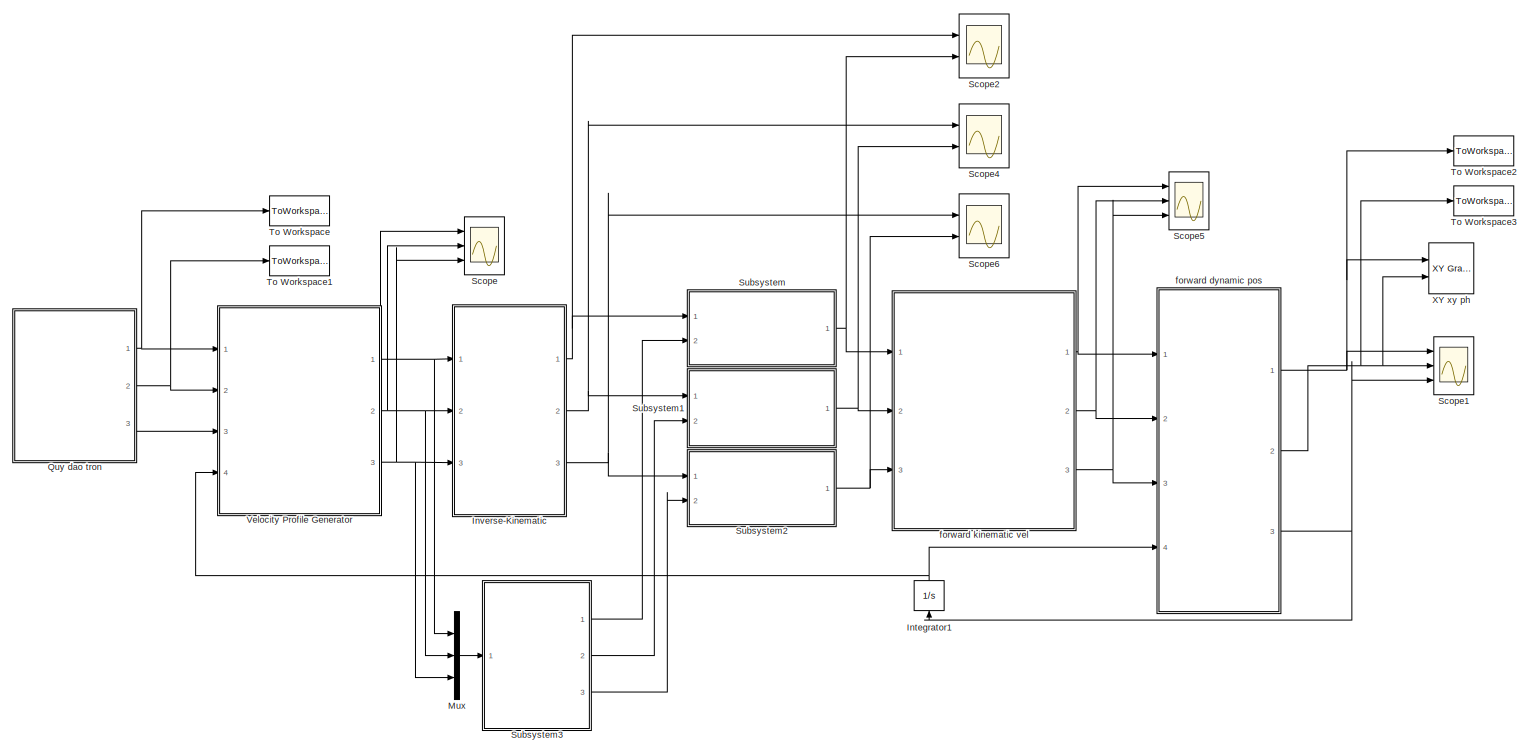
[diagram: root canvas - part 1/1, most of the canvas]
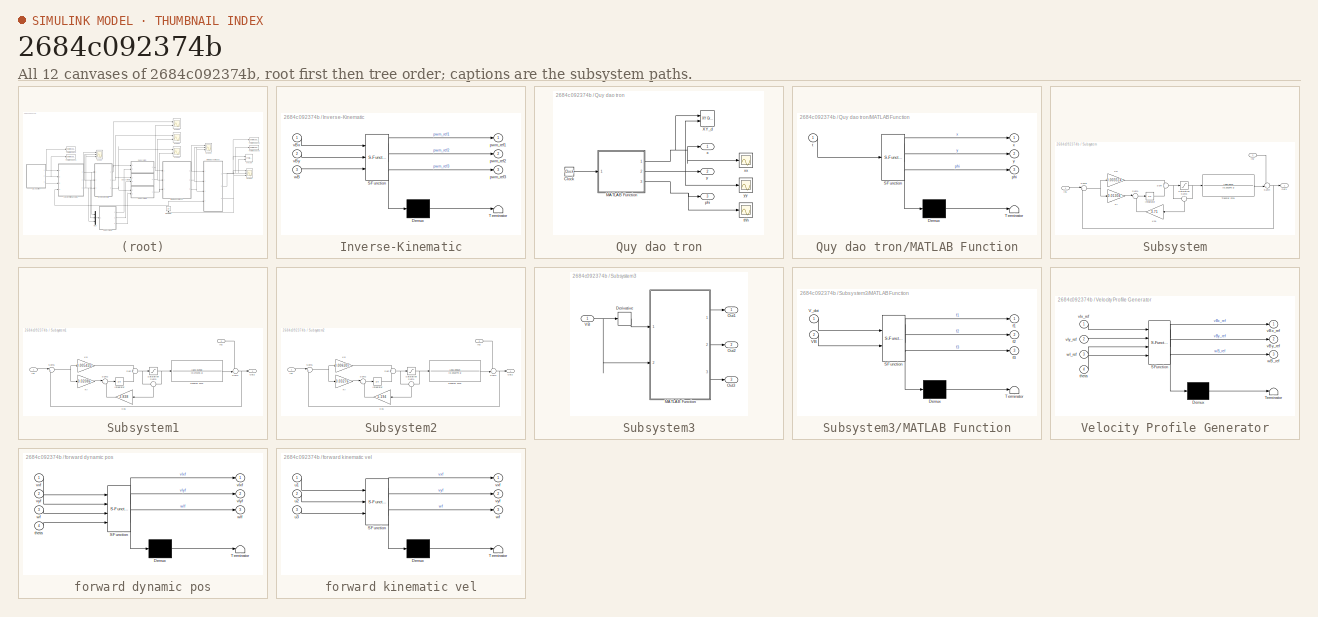
[diagram: thumbnail index - all 12 canvases of the model, root first then tree order]
MODEL slx_2684c092374b
KIND model
CONFIG AbsTol = auto
CONFIG EnableMultiTasking = off
CONFIG FixedStep = auto
CONFIG MaxStep = auto
CONFIG MinStep = auto
CONFIG RelTol = 1e-3
CONFIG SampleTimeConstraint = Unconstrained
CONFIG Solver = VariableStepAuto
CONFIG SolverName = VariableStepAuto
CONFIG StartTime = 0.0
CONFIG StopTime = 300
BLOCK [Integrator] Integrator1
  Ports = [1, 1]
BLOCK [SubSystem] Inverse-Kinematic
  ErrorFcn = Stateflow.Translate.translate
  PermitHierarchicalResolution = ExplicitOnly
  Ports = [3, 3]
  RequestExecContextInheritance = off
  SFBlockType = MATLAB Function
  TreatAsAtomicUnit = on
BLOCK [Demux] Inverse-Kinematic/ Demux 
  Outputs = 1
  Ports = [1, 1]
BLOCK [S-Function] Inverse-Kinematic/ SFunction 
  EnableBusSupport = on
  FunctionName = sf_sfun
  PortCounts = [3 4]
  Ports = [3, 4]
  SFcnIsStateOwnerBlock = off
  SFunctionDeploymentMode = off
  Tag = Stateflow S-Function OMNI_BOT_MOEDL2 4
BLOCK [Terminator] Inverse-Kinematic/ Terminator 
BLOCK [Outport] Inverse-Kinematic/pwm_ref1
  IconDisplay = Port number
BLOCK [Outport] Inverse-Kinematic/pwm_ref2
  IconDisplay = Port number
  Port = 2
BLOCK [Outport] Inverse-Kinematic/pwm_ref3
  IconDisplay = Port number
  Port = 3
BLOCK [Inport] Inverse-Kinematic/vBx
  IconDisplay = Port number
BLOCK [Inport] Inverse-Kinematic/vBy
  IconDisplay = Port number
  Port = 2
BLOCK [Inport] Inverse-Kinematic/wB
  IconDisplay = Port number
  Port = 3
BLOCK [Mux] Mux
  DisplayOption = bar
  Inputs = 3
  Ports = [3, 1]
BLOCK [SubSystem] Quy dao tron
  Ports = [0, 3]
  RequestExecContextInheritance = off
BLOCK [Clock] Quy dao tron/Clock
  Decimation = 1
BLOCK [SubSystem] Quy dao tron/MATLAB Function
  ErrorFcn = Stateflow.Translate.translate
  PermitHierarchicalResolution = ExplicitOnly
  Ports = [1, 3]
  RequestExecContextInheritance = off
  SFBlockType = MATLAB Function
  TreatAsAtomicUnit = on
BLOCK [Demux] Quy dao tron/MATLAB Function/ Demux 
  DisplayOption = bar
  Outputs = 1
  Ports = [1, 1]
BLOCK [S-Function] Quy dao tron/MATLAB Function/ SFunction 
  EnableBusSupport = on
  FunctionName = sf_sfun
  PortCounts = [1 4]
  Ports = [1, 4]
  SFcnIsStateOwnerBlock = off
  SFunctionDeploymentMode = off
  Tag = Stateflow S-Function OMNI_BOT_MOEDL2 6
BLOCK [Terminator] Quy dao tron/MATLAB Function/ Terminator 
BLOCK [Outport] Quy dao tron/MATLAB Function/phi
  IconDisplay = Port number
  Port = 3
  VectorParamsAs1DForOutWhenUnconnected = on
BLOCK [Inport] Quy dao tron/MATLAB Function/t
  IconDisplay = Port number
BLOCK [Outport] Quy dao tron/MATLAB Function/x
  IconDisplay = Port number
  VectorParamsAs1DForOutWhenUnconnected = on
BLOCK [Outport] Quy dao tron/MATLAB Function/y
  IconDisplay = Port number
  Port = 2
  VectorParamsAs1DForOutWhenUnconnected = on
BLOCK [Reference] Quy dao tron/XY_d  REF=simulink/Sinks/XY Graph
  Ports = [2]
  SourceBlock = simulink/Sinks/XY Graph
  SourceProductBaseCode = SL
  SourceType = XY scope.
BLOCK [Outport] Quy dao tron/phi
  IconDisplay = Port number
  Port = 3
  VectorParamsAs1DForOutWhenUnconnected = on
BLOCK [Scope] Quy dao tron/thh
  Floating = off
  NumInputPorts = 1
  Ports = [1]
  ScopeSpecificationString = Simulink.scopes.TimeScopeBlockCfg('CurrentConfiguration', extmgr.ConfigurationSet(extmgr.Configuration('Core','General UI',true),extmgr.Configuration('Core','Source UI',true),extmgr.Configuration('Sources','WiredSimulink',true,'DataLoggingVariableName','ScopeData2'),extmgr.Configuration('Visuals','Time Domain',true,'SerializedDisplays',{struct('MinYLimReal','0.7854','MaxYLimReal','8.63938','YLabel...<+1353ch>
BLOCK [Outport] Quy dao tron/x
  IconDisplay = Port number
  VectorParamsAs1DForOutWhenUnconnected = on
BLOCK [Scope] Quy dao tron/xx
  Floating = off
  NumInputPorts = 1
  Ports = [1]
  ScopeSpecificationString = Simulink.scopes.TimeScopeBlockCfg('CurrentConfiguration', extmgr.ConfigurationSet(extmgr.Configuration('Core','General UI',true),extmgr.Configuration('Core','Source UI',true),extmgr.Configuration('Sources','WiredSimulink',true,'DataLoggingVariableName','ScopeData4'),extmgr.Configuration('Visuals','Time Domain',true,'SerializedDisplays',{struct('MinYLimReal','-1.24992','MaxYLimReal','1.24999','YLab...<+1376ch>
BLOCK [Outport] Quy dao tron/y
  IconDisplay = Port number
  Port = 2
  VectorParamsAs1DForOutWhenUnconnected = on
BLOCK [Scope] Quy dao tron/yy
  Floating = off
  NumInputPorts = 1
  Ports = [1]
  ScopeSpecificationString = Simulink.scopes.TimeScopeBlockCfg('CurrentConfiguration', extmgr.ConfigurationSet(extmgr.Configuration('Core','General UI',true),extmgr.Configuration('Core','Source UI',true),extmgr.Configuration('Sources','WiredSimulink',true,'DataLoggingVariableName','ScopeData3'),extmgr.Configuration('Visuals','Time Domain',true,'SerializedDisplays',{struct('MinYLimReal','-1.24994','MaxYLimReal','1.24992','YLab...<+1376ch>
BLOCK [Scope] Scope
  Floating = off
  NumInputPorts = 3
  Ports = [3]
  ScopeSpecificationString = Simulink.scopes.TimeScopeBlockCfg('CurrentConfiguration', extmgr.ConfigurationSet(extmgr.Configuration('Core','General UI',true),extmgr.Configuration('Core','Source UI',true),extmgr.Configuration('Sources','WiredSimulink',true),extmgr.Configuration('Visuals','Time Domain',true,'SerializedDisplays',{struct('MinYLimReal','-2.10664','MaxYLimReal','8.96072','YLabelReal','','MinYLimMag','0.00000','MaxY...<+1456ch>
BLOCK [Scope] Scope1
  Floating = off
  NumInputPorts = 3
  Ports = [3]
  ScopeSpecificationString = Simulink.scopes.TimeScopeBlockCfg('CurrentConfiguration', extmgr.ConfigurationSet(extmgr.Configuration('Core','General UI',true),extmgr.Configuration('Core','Source UI',true),extmgr.Configuration('Sources','WiredSimulink',true,'DataLoggingVariableName','ScopeData1'),extmgr.Configuration('Visuals','Time Domain',true,'SerializedDisplays',{struct('MinYLimReal','-2.09898','MaxYLimReal','8.89309','YLab...<+1465ch>
BLOCK [Scope] Scope2
  Floating = off
  NumInputPorts = 2
  Ports = [2]
  ScopeSpecificationString = Simulink.scopes.TimeScopeBlockCfg('CurrentConfiguration', extmgr.ConfigurationSet(extmgr.Configuration('Core','General UI',true),extmgr.Configuration('Core','Source UI',true),extmgr.Configuration('Sources','WiredSimulink',true,'DataLoggingVariableName','ScopeData1'),extmgr.Configuration('Visuals','Time Domain',true,'SerializedDisplays',{struct('MinYLimReal','-2485.46908','MaxYLimReal','3823.39179'...<+1446ch>
BLOCK [Scope] Scope4
  Floating = off
  NumInputPorts = 2
  Ports = [2]
  ScopeSpecificationString = Simulink.scopes.TimeScopeBlockCfg('CurrentConfiguration', extmgr.ConfigurationSet(extmgr.Configuration('Core','General UI',true),extmgr.Configuration('Core','Source UI',true),extmgr.Configuration('Sources','WiredSimulink',true,'DataLoggingVariableName','ScopeData2'),extmgr.Configuration('Visuals','Time Domain',true,'SerializedDisplays',{struct('MinYLimReal','-2020.33209','MaxYLimReal','3962.48018'...<+1472ch>
BLOCK [Scope] Scope5
  Floating = off
  NumInputPorts = 3
  Ports = [3]
  ScopeSpecificationString = Simulink.scopes.TimeScopeBlockCfg('CurrentConfiguration', extmgr.ConfigurationSet(extmgr.Configuration('Core','General UI',true),extmgr.Configuration('Core','Source UI',true),extmgr.Configuration('Sources','WiredSimulink',true,'DataLoggingVariableName','ScopeData5'),extmgr.Configuration('Visuals','Time Domain',true,'SerializedDisplays',{struct('MinYLimReal','-2.09883','MaxYLimReal','8.89307','YLab...<+1468ch>
BLOCK [Scope] Scope6
  Floating = off
  NumInputPorts = 2
  Ports = [2]
  ScopeSpecificationString = Simulink.scopes.TimeScopeBlockCfg('CurrentConfiguration', extmgr.ConfigurationSet(extmgr.Configuration('Core','General UI',true),extmgr.Configuration('Core','Source UI',true),extmgr.Configuration('Sources','WiredSimulink',true,'DataLoggingVariableName','ScopeData3'),extmgr.Configuration('Visuals','Time Domain',true,'SerializedDisplays',{struct('MinYLimReal','-2207.36863','MaxYLimReal','3892.21149'...<+1472ch>
BLOCK [SubSystem] Subsystem
  Ports = [2, 1]
  RequestExecContextInheritance = off
BLOCK [Inport] Subsystem/In1
  IconDisplay = Port number
BLOCK [Inport] Subsystem/In2
  IconDisplay = Port number
  Port = 2
BLOCK [Integrator] Subsystem/Integrator
  Ports = [1, 1]
BLOCK [Gain] Subsystem/Ki
  Gain = 0.01304
  OutDataTypeStr = Inherit: Inherit via internal rule
  ParamDataTypeStr = Inherit: Inherit via internal rule
  SaturateOnIntegerOverflow = off
BLOCK [Gain] Subsystem/Kp
  Gain = 0.003514
  OutDataTypeStr = Inherit: Inherit via internal rule
  ParamDataTypeStr = Inherit: Inherit via internal rule
  SaturateOnIntegerOverflow = off
BLOCK [Gain] Subsystem/Kp1
  Gain = 3.71
  OutDataTypeStr = Inherit: Inherit via internal rule
  ParamDataTypeStr = Inherit: Inherit via internal rule
  SaturateOnIntegerOverflow = off
BLOCK [Outport] Subsystem/Out1
  IconDisplay = Port number
BLOCK [Saturate] Subsystem/Saturation
  InputPortMap = u0
  LowerLimit = -12
  Ports = [1, 1]
  UpperLimit = 12
BLOCK [Sum] Subsystem/Sum
  IconShape = round
  InputSameDT = off
  Inputs = +|+
  OutDataTypeStr = Inherit: Inherit via internal rule
  Ports = [2, 1]
  SaturateOnIntegerOverflow = off
BLOCK [Sum] Subsystem/Sum1
  IconShape = round
  InputSameDT = off
  Inputs = |++
  OutDataTypeStr = Inherit: Inherit via internal rule
  Ports = [2, 1]
  SaturateOnIntegerOverflow = off
BLOCK [Sum] Subsystem/Sum3
  IconShape = round
  InputSameDT = off
  Inputs = -|+
  OutDataTypeStr = Inherit: Inherit via internal rule
  Ports = [2, 1]
  SaturateOnIntegerOverflow = off
BLOCK [Sum] Subsystem/Sum4
  IconShape = round
  InputSameDT = off
  Inputs = -+|
  OutDataTypeStr = Inherit: Inherit via internal rule
  Ports = [2, 1]
  SaturateOnIntegerOverflow = off
BLOCK [Sum] Subsystem/Sum5
  IconShape = round
  InputSameDT = off
  Inputs = |+-
  OutDataTypeStr = Inherit: Inherit via internal rule
  Ports = [2, 1]
  SaturateOnIntegerOverflow = off
BLOCK [TransferFcn] Subsystem/Transfer Fcn1
  Denominator = [0.291876 1]
  Numerator = [496.5947]
BLOCK [SubSystem] Subsystem1
  Ports = [2, 1]
  RequestExecContextInheritance = off
BLOCK [Inport] Subsystem1/In1 
  IconDisplay = Port number
BLOCK [Inport] Subsystem1/In2 
  IconDisplay = Port number
  Port = 2
BLOCK [Integrator] Subsystem1/Integrator
  Ports = [1, 1]
BLOCK [Gain] Subsystem1/Ki
  Gain = 0.02086
  OutDataTypeStr = Inherit: Inherit via internal rule
  ParamDataTypeStr = Inherit: Inherit via internal rule
  SaturateOnIntegerOverflow = off
BLOCK [Gain] Subsystem1/Kp
  Gain = 0.005435
  OutDataTypeStr = Inherit: Inherit via internal rule
  ParamDataTypeStr = Inherit: Inherit via internal rule
  SaturateOnIntegerOverflow = off
BLOCK [Gain] Subsystem1/Kp1
  Gain = 3.838
  OutDataTypeStr = Inherit: Inherit via internal rule
  ParamDataTypeStr = Inherit: Inherit via internal rule
  SaturateOnIntegerOverflow = off
BLOCK [Outport] Subsystem1/Out2
  IconDisplay = Port number
BLOCK [Saturate] Subsystem1/Saturation
  InputPortMap = u0
  LowerLimit = -12
  Ports = [1, 1]
  UpperLimit = 12
BLOCK [Sum] Subsystem1/Sum
  IconShape = round
  InputSameDT = off
  Inputs = +|+
  OutDataTypeStr = Inherit: Inherit via internal rule
  Ports = [2, 1]
  SaturateOnIntegerOverflow = off
BLOCK [Sum] Subsystem1/Sum2
  IconShape = round
  InputSameDT = off
  Inputs = |++
  OutDataTypeStr = Inherit: Inherit via internal rule
  Ports = [2, 1]
  SaturateOnIntegerOverflow = off
BLOCK [Sum] Subsystem1/Sum3
  IconShape = round
  InputSameDT = off
  Inputs = -|+
  OutDataTypeStr = Inherit: Inherit via internal rule
  Ports = [2, 1]
  SaturateOnIntegerOverflow = off
BLOCK [Sum] Subsystem1/Sum4
  IconShape = round
  InputSameDT = off
  Inputs = -+|
  OutDataTypeStr = Inherit: Inherit via internal rule
  Ports = [2, 1]
  SaturateOnIntegerOverflow = off
BLOCK [Sum] Subsystem1/Sum5
  IconShape = round
  InputSameDT = off
  Inputs = |+-
  OutDataTypeStr = Inherit: Inherit via internal rule
  Ports = [2, 1]
  SaturateOnIntegerOverflow = off
BLOCK [TransferFcn] Subsystem1/Transfer Fcn1
  Denominator = [0.271376 1]
  Numerator = [324.41492]
BLOCK [SubSystem] Subsystem2
  Ports = [2, 1]
  RequestExecContextInheritance = off
BLOCK [Inport] Subsystem2/In1 
  IconDisplay = Port number
BLOCK [Inport] Subsystem2/In2 
  IconDisplay = Port number
  Port = 2
BLOCK [Integrator] Subsystem2/Integrator
  Ports = [1, 1]
BLOCK [Gain] Subsystem2/Ki
  Gain = 0.03276
  OutDataTypeStr = Inherit: Inherit via internal rule
  ParamDataTypeStr = Inherit: Inherit via internal rule
  SaturateOnIntegerOverflow = off
BLOCK [Gain] Subsystem2/Kp
  Gain = 0.006307
  OutDataTypeStr = Inherit: Inherit via internal rule
  ParamDataTypeStr = Inherit: Inherit via internal rule
  SaturateOnIntegerOverflow = off
BLOCK [Gain] Subsystem2/Kp1
  Gain = 5.194
  OutDataTypeStr = Inherit: Inherit via internal rule
  ParamDataTypeStr = Inherit: Inherit via internal rule
  SaturateOnIntegerOverflow = off
BLOCK [Outport] Subsystem2/Out2
  IconDisplay = Port number
BLOCK [Saturate] Subsystem2/Saturation
  InputPortMap = u0
  LowerLimit = -12
  Ports = [1, 1]
  UpperLimit = 12
BLOCK [Sum] Subsystem2/Sum
  IconShape = round
  InputSameDT = off
  Inputs = +|+
  OutDataTypeStr = Inherit: Inherit via internal rule
  Ports = [2, 1]
  SaturateOnIntegerOverflow = off
BLOCK [Sum] Subsystem2/Sum1
  IconShape = round
  InputSameDT = off
  Inputs = -|+
  OutDataTypeStr = Inherit: Inherit via internal rule
  Ports = [2, 1]
  SaturateOnIntegerOverflow = off
BLOCK [Sum] Subsystem2/Sum2
  IconShape = round
  InputSameDT = off
  Inputs = |++
  OutDataTypeStr = Inherit: Inherit via internal rule
  Ports = [2, 1]
  SaturateOnIntegerOverflow = off
BLOCK [Sum] Subsystem2/Sum4
  IconShape = round
  InputSameDT = off
  Inputs = -+|
  OutDataTypeStr = Inherit: Inherit via internal rule
  Ports = [2, 1]
  SaturateOnIntegerOverflow = off
BLOCK [Sum] Subsystem2/Sum5
  IconShape = round
  InputSameDT = off
  Inputs = |+-
  OutDataTypeStr = Inherit: Inherit via internal rule
  Ports = [2, 1]
  SaturateOnIntegerOverflow = off
BLOCK [TransferFcn] Subsystem2/Transfer Fcn2
  Denominator = [0.1918779 1]
  Numerator = [292.09967]
BLOCK [SubSystem] Subsystem3
  Ports = [1, 3]
  RequestExecContextInheritance = off
BLOCK [Derivative] Subsystem3/Derivative
BLOCK [SubSystem] Subsystem3/MATLAB Function
  ErrorFcn = Stateflow.Translate.translate
  PermitHierarchicalResolution = ExplicitOnly
  Ports = [2, 3]
  RequestExecContextInheritance = off
  SFBlockType = MATLAB Function
  TreatAsAtomicUnit = on
BLOCK [Demux] Subsystem3/MATLAB Function/ Demux 
  Outputs = 1
  Ports = [1, 1]
BLOCK [S-Function] Subsystem3/MATLAB Function/ SFunction 
  EnableBusSupport = on
  FunctionName = sf_sfun
  PortCounts = [2 4]
  Ports = [2, 4]
  SFcnIsStateOwnerBlock = off
  SFunctionDeploymentMode = off
  Tag = Stateflow S-Function OMNI_BOT_MOEDL2 1
BLOCK [Terminator] Subsystem3/MATLAB Function/ Terminator 
BLOCK [Inport] Subsystem3/MATLAB Function/VB
  IconDisplay = Port number
  Port = 2
BLOCK [Inport] Subsystem3/MATLAB Function/V_dot
  IconDisplay = Port number
BLOCK [Outport] Subsystem3/MATLAB Function/f1
  IconDisplay = Port number
BLOCK [Outport] Subsystem3/MATLAB Function/f2
  IconDisplay = Port number
  Port = 2
BLOCK [Outport] Subsystem3/MATLAB Function/f3
  IconDisplay = Port number
  Port = 3
BLOCK [Outport] Subsystem3/Out1
  IconDisplay = Port number
BLOCK [Outport] Subsystem3/Out2
  IconDisplay = Port number
  Port = 2
BLOCK [Outport] Subsystem3/Out3
  IconDisplay = Port number
  Port = 3
BLOCK [Inport] Subsystem3/VB
  IconDisplay = Port number
BLOCK [ToWorkspace] To Workspace
  FixptAsFi = on
  MaxDataPoints = inf
  Ports = [1]
  SampleTime = -1
  SaveFormat = Timeseries
  VariableName = x_set
BLOCK [ToWorkspace] To Workspace1
  FixptAsFi = on
  MaxDataPoints = inf
  Ports = [1]
  SampleTime = -1
  SaveFormat = Timeseries
  VariableName = y_set
BLOCK [ToWorkspace] To Workspace2
  FixptAsFi = on
  MaxDataPoints = inf
  Ports = [1]
  SampleTime = -1
  SaveFormat = Timeseries
  VariableName = x_rb
BLOCK [ToWorkspace] To Workspace3
  FixptAsFi = on
  MaxDataPoints = inf
  Ports = [1]
  SampleTime = -1
  SaveFormat = Timeseries
  VariableName = y_rb
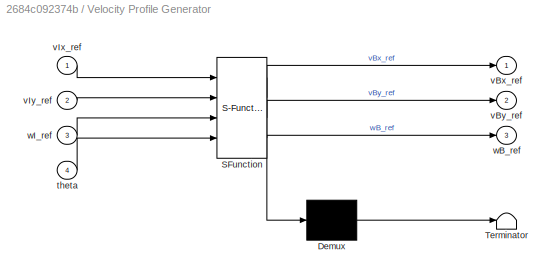
BLOCK [SubSystem] Velocity Profile Generator
  ErrorFcn = Stateflow.Translate.translate
  PermitHierarchicalResolution = ExplicitOnly
  Ports = [4, 3]
  RequestExecContextInheritance = off
  SFBlockType = MATLAB Function
  TreatAsAtomicUnit = on
BLOCK [Demux] Velocity Profile Generator/ Demux 
  Outputs = 1
  Ports = [1, 1]
BLOCK [S-Function] Velocity Profile Generator/ SFunction 
  EnableBusSupport = on
  FunctionName = sf_sfun
  PortCounts = [4 4]
  Ports = [4, 4]
  SFcnIsStateOwnerBlock = off
  SFunctionDeploymentMode = off
  Tag = Stateflow S-Function OMNI_BOT_MOEDL2 5
BLOCK [Terminator] Velocity Profile Generator/ Terminator 
BLOCK [Inport] Velocity Profile Generator/theta
  IconDisplay = Port number
  Port = 4
BLOCK [Outport] Velocity Profile Generator/vBx_ref
  IconDisplay = Port number
BLOCK [Outport] Velocity Profile Generator/vBy_ref
  IconDisplay = Port number
  Port = 2
BLOCK [Inport] Velocity Profile Generator/vIx_ref
  IconDisplay = Port number
BLOCK [Inport] Velocity Profile Generator/vIy_ref
  IconDisplay = Port number
  Port = 2
BLOCK [Outport] Velocity Profile Generator/wB_ref
  IconDisplay = Port number
  Port = 3
BLOCK [Inport] Velocity Profile Generator/wI_ref
  IconDisplay = Port number
  Port = 3
BLOCK [Reference] XY xy ph  REF=simulink/Sinks/XY Graph
  Ports = [2]
  SourceBlock = simulink/Sinks/XY Graph
  SourceProductBaseCode = SL
  SourceType = XY scope.
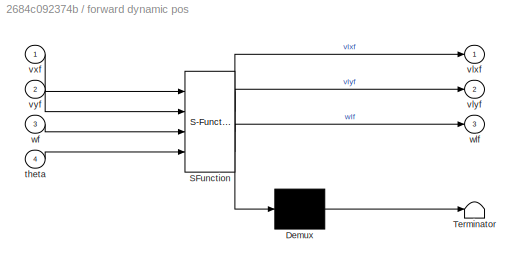
BLOCK [SubSystem] forward dynamic pos
  ErrorFcn = Stateflow.Translate.translate
  PermitHierarchicalResolution = ExplicitOnly
  Ports = [4, 3]
  RequestExecContextInheritance = off
  SFBlockType = MATLAB Function
  TreatAsAtomicUnit = on
BLOCK [Demux] forward dynamic pos/ Demux 
  Outputs = 1
  Ports = [1, 1]
BLOCK [S-Function] forward dynamic pos/ SFunction 
  EnableBusSupport = on
  FunctionName = sf_sfun
  PortCounts = [4 4]
  Ports = [4, 4]
  SFcnIsStateOwnerBlock = off
  SFunctionDeploymentMode = off
  Tag = Stateflow S-Function OMNI_BOT_MOEDL2 2
BLOCK [Terminator] forward dynamic pos/ Terminator 
BLOCK [Inport] forward dynamic pos/theta
  IconDisplay = Port number
  Port = 4
BLOCK [Outport] forward dynamic pos/vlxf
  IconDisplay = Port number
BLOCK [Outport] forward dynamic pos/vlyf
  IconDisplay = Port number
  Port = 2
BLOCK [Inport] forward dynamic pos/vxf
  IconDisplay = Port number
BLOCK [Inport] forward dynamic pos/vyf
  IconDisplay = Port number
  Port = 2
BLOCK [Inport] forward dynamic pos/wf
  IconDisplay = Port number
  Port = 3
BLOCK [Outport] forward dynamic pos/wlf
  IconDisplay = Port number
  Port = 3
BLOCK [SubSystem] forward kinematic vel
  ErrorFcn = Stateflow.Translate.translate
  PermitHierarchicalResolution = ExplicitOnly
  Ports = [3, 3]
  RequestExecContextInheritance = off
  SFBlockType = MATLAB Function
  TreatAsAtomicUnit = on
BLOCK [Demux] forward kinematic vel/ Demux 
  Outputs = 1
  Ports = [1, 1]
BLOCK [S-Function] forward kinematic vel/ SFunction 
  EnableBusSupport = on
  FunctionName = sf_sfun
  PortCounts = [3 4]
  Ports = [3, 4]
  SFcnIsStateOwnerBlock = off
  SFunctionDeploymentMode = off
  Tag = Stateflow S-Function OMNI_BOT_MOEDL2 3
BLOCK [Terminator] forward kinematic vel/ Terminator 
BLOCK [Inport] forward kinematic vel/u1
  IconDisplay = Port number
BLOCK [Inport] forward kinematic vel/u2
  IconDisplay = Port number
  Port = 2
BLOCK [Inport] forward kinematic vel/u3
  IconDisplay = Port number
  Port = 3
BLOCK [Outport] forward kinematic vel/vxf
  IconDisplay = Port number
BLOCK [Outport] forward kinematic vel/vyf
  IconDisplay = Port number
  Port = 2
BLOCK [Outport] forward kinematic vel/wf
  IconDisplay = Port number
  Port = 3
NET Integrator1:1 -> Velocity Profile Generator:4, forward dynamic pos:4
NET Inverse-Kinematic:1 -> Scope2:1, Subsystem:1
NET Inverse-Kinematic:2 -> Scope4:1, Subsystem1:1
NET Inverse-Kinematic:3 -> Scope6:1, Subsystem2:1
LINE Mux:1 -> Subsystem3:1
LINE Quy dao tron/Clock:1 -> Quy dao tron/MATLAB Function:1
NET Quy dao tron/MATLAB Function:1 -> Quy dao tron/XY_d:1, Quy dao tron/x:1, Quy dao tron/xx:1
NET Quy dao tron/MATLAB Function:2 -> Quy dao tron/XY_d:2, Quy dao tron/y:1, Quy dao tron/yy:1
NET Quy dao tron/MATLAB Function:3 -> Quy dao tron/phi:1, Quy dao tron/thh:1
NET Quy dao tron:1 -> To Workspace:1, Velocity Profile Generator:1
NET Quy dao tron:2 -> To Workspace1:1, Velocity Profile Generator:2
LINE Quy dao tron:3 -> Velocity Profile Generator:3
LINE Subsystem/In1:1 -> Subsystem/Sum5:1
LINE Subsystem/In2:1 -> Subsystem/Sum4:1
LINE Subsystem/Integrator:1 -> Subsystem/Sum:2
LINE Subsystem/Ki:1 -> Subsystem/Sum1:1
LINE Subsystem/Kp1:1 -> Subsystem/Sum1:2
LINE Subsystem/Kp:1 -> Subsystem/Sum:1
NET Subsystem/Saturation:1 -> Subsystem/Sum3:2, Subsystem/Transfer Fcn1:1
LINE Subsystem/Sum1:1 -> Subsystem/Integrator:1
LINE Subsystem/Sum3:1 -> Subsystem/Kp1:1
NET Subsystem/Sum4:1 -> Subsystem/Out1:1, Subsystem/Sum5:2
NET Subsystem/Sum5:1 -> Subsystem/Ki:1, Subsystem/Kp:1
NET Subsystem/Sum:1 -> Subsystem/Saturation:1, Subsystem/Sum3:1
LINE Subsystem/Transfer Fcn1:1 -> Subsystem/Sum4:2
LINE Subsystem1/In1 :1 -> Subsystem1/Sum5:1
LINE Subsystem1/In2 :1 -> Subsystem1/Sum4:1
LINE Subsystem1/Integrator:1 -> Subsystem1/Sum:2
LINE Subsystem1/Ki:1 -> Subsystem1/Sum2:1
LINE Subsystem1/Kp1:1 -> Subsystem1/Sum2:2
LINE Subsystem1/Kp:1 -> Subsystem1/Sum:1
NET Subsystem1/Saturation:1 -> Subsystem1/Sum3:2, Subsystem1/Transfer Fcn1:1
LINE Subsystem1/Sum2:1 -> Subsystem1/Integrator:1
LINE Subsystem1/Sum3:1 -> Subsystem1/Kp1:1
NET Subsystem1/Sum4:1 -> Subsystem1/Out2:1, Subsystem1/Sum5:2
NET Subsystem1/Sum5:1 -> Subsystem1/Ki:1, Subsystem1/Kp:1
NET Subsystem1/Sum:1 -> Subsystem1/Saturation:1, Subsystem1/Sum3:1
LINE Subsystem1/Transfer Fcn1:1 -> Subsystem1/Sum4:2
NET Subsystem1:1 -> Scope4:2, forward kinematic vel:2
LINE Subsystem2/In1 :1 -> Subsystem2/Sum5:1
LINE Subsystem2/In2 :1 -> Subsystem2/Sum4:1
LINE Subsystem2/Integrator:1 -> Subsystem2/Sum:2
LINE Subsystem2/Ki:1 -> Subsystem2/Sum2:1
LINE Subsystem2/Kp1:1 -> Subsystem2/Sum2:2
LINE Subsystem2/Kp:1 -> Subsystem2/Sum:1
NET Subsystem2/Saturation:1 -> Subsystem2/Sum1:2, Subsystem2/Transfer Fcn2:1
LINE Subsystem2/Sum1:1 -> Subsystem2/Kp1:1
LINE Subsystem2/Sum2:1 -> Subsystem2/Integrator:1
NET Subsystem2/Sum4:1 -> Subsystem2/Out2:1, Subsystem2/Sum5:2
NET Subsystem2/Sum5:1 -> Subsystem2/Ki:1, Subsystem2/Kp:1
NET Subsystem2/Sum:1 -> Subsystem2/Saturation:1, Subsystem2/Sum1:1
LINE Subsystem2/Transfer Fcn2:1 -> Subsystem2/Sum4:2
NET Subsystem2:1 -> Scope6:2, forward kinematic vel:3
LINE Subsystem3/Derivative:1 -> Subsystem3/MATLAB Function:1
LINE Subsystem3/MATLAB Function:1 -> Subsystem3/Out1:1
LINE Subsystem3/MATLAB Function:2 -> Subsystem3/Out2:1
LINE Subsystem3/MATLAB Function:3 -> Subsystem3/Out3:1
NET Subsystem3/VB:1 -> Subsystem3/Derivative:1, Subsystem3/MATLAB Function:2
LINE Subsystem3:1 -> Subsystem:2
LINE Subsystem3:2 -> Subsystem1:2
LINE Subsystem3:3 -> Subsystem2:2
NET Subsystem:1 -> Scope2:2, forward kinematic vel:1
NET Velocity Profile Generator:1 -> Inverse-Kinematic:1, Mux:1, Scope:1
NET Velocity Profile Generator:2 -> Inverse-Kinematic:2, Mux:2, Scope:2
NET Velocity Profile Generator:3 -> Inverse-Kinematic:3, Mux:3, Scope:3
NET forward dynamic pos:1 -> Scope1:1, To Workspace2:1, XY xy ph:1
NET forward dynamic pos:2 -> Scope1:2, To Workspace3:1, XY xy ph:2
NET forward dynamic pos:3 -> Integrator1:1, Scope1:3
NET forward kinematic vel:1 -> Scope5:1, forward dynamic pos:1
NET forward kinematic vel:2 -> Scope5:2, forward dynamic pos:2
NET forward kinematic vel:3 -> Scope5:3, forward dynamic pos:3
note: NET lines group one-source signal fan-out (src -> all destinations, sorted); 1:1 wires keep LINE
CHART Subsystem3/MATLAB Function states=1 transitions=1
  STATE_LABEL 'eML_blk_kernel()'
  STATE_LABEL 'SCRIPT:\nfunction [f1,f2,f3] = fcn(V_dot,VB)\nm = 4; % Mass of the mobile robot\nJz = 0.5; % Moment of inertia of the robot\nN=56; % Reduction Ratio of the motors (adimensional)\neta=1; % Mechanical coupling efficiency (adimensional)\nl=0.137;  % % Distance between base center and wheel center [m]\nrw=0.0259; % Radius of wheels [m]\n\nB2 = [-cos(pi/6) -cos(pi/3) rw;\n      cos(pi/6) -cos(pi/3) rw;\n      0 1...<+138ch>'
CHART forward dynamic pos states=1 transitions=1
  STATE_LABEL 'eML_blk_kernel()'
  STATE_LABEL 'SCRIPT:\nfunction [vlxf,vlyf,wlf] = Linearization3(vxf,vyf,wf,theta)\n%Dong hoc nghich tim vi tri\n\nN=56; % Reduction Ratio of the motors (adimensional)\neta=1; % Mechanical coupling efficiency (adimensional)\nl=0.137;  % % Distance between base center and wheel center [m]\nrw=0.0259; % Radius of wheels [m]\n\nB = [-cos(pi/6) -cos(pi/3) rw;\n     cos(pi/6) -cos(pi/3) rw;\n     0 1 rw];\n\nA1 = [cosd(theta) -s...<+134ch>'
CHART forward kinematic vel states=1 transitions=1
  STATE_LABEL 'eML_blk_kernel()'
  STATE_LABEL 'SCRIPT:\nfunction [vxf,vyf,wf] = Linearization1(u1,u2,u3)\n%Dong hoc nghich tim van toc\n\nN=56; % Reduction Ratio of the motors (adimensional)\neta=1; % Mechanical coupling efficiency (adimensional)\nl=0.137;  % % Distance between base center and wheel center [m]\nrw=0.0259; % Radius of wheels [m]\n\n A2 = [-cos(pi/6) -cos(pi/3) rw;\n     cos(pi/6) -cos(pi/3) rw;\n     0 1 rw];\n \n vel = (rw/N)*inv(A2)*[u1;u...<+63ch>'
CHART Inverse-Kinematic states=1 transitions=1
  STATE_LABEL 'eML_blk_kernel()'
  STATE_LABEL 'SCRIPT:\nfunction [pwm_ref1,pwm_ref2,pwm_ref3] = Inv_KIN(vBx,vBy,wB)\n\n% Tu huong va goc quay dong co tinh ra van toc goc 3 dong co (pwm cua 3\n% dong co)\n\nN=56; % Reduction Ratio of the motors (adimensional)\neta=1; % Mechanical coupling efficiency (adimensional)\nl=0.137;  % % Distance between base center and wheel center [m]\nrw=0.0259; % Radius of wheels [m]\n\nB = [-cos(pi/6) -cos(pi/3) rw;\n     cos(...<+250ch>'
CHART Velocity Profile Generator states=1 transitions=1
  STATE_LABEL 'eML_blk_kernel()'
  STATE_LABEL 'SCRIPT:\nfunction [vBx_ref,vBy_ref,wB_ref] = Vel_prof(vIx_ref,vIy_ref,wI_ref,theta)\n% Huong va goc quay dong co\n\nN=56; % Reduction Ratio of the motors (adimensional)\neta=1; % Mechanical coupling efficiency (adimensional)\nl=0.137;  % Distance between base center and wheel center [m]\nrw=0.0259; % Wheel radius [m]\n\nA=[cosd(theta) -sind(theta) 0; sind(theta) cosd(theta) 0; 0 0 1];\n\nvel1 = A\\[vIx_ref;vI...<+226ch>'
CHART Quy dao tron/MATLAB Function states=1 transitions=1
  STATE_LABEL 'eML_blk_kernel()'
  STATE_LABEL 'SCRIPT:\nfunction [x,y,phi] = fcn(t)\nx=1.*cos((pi/50).*t);\ny=1.*sin((pi/50).*t);\nphi=(pi/50).*t + pi/2;\nend\n\n'
